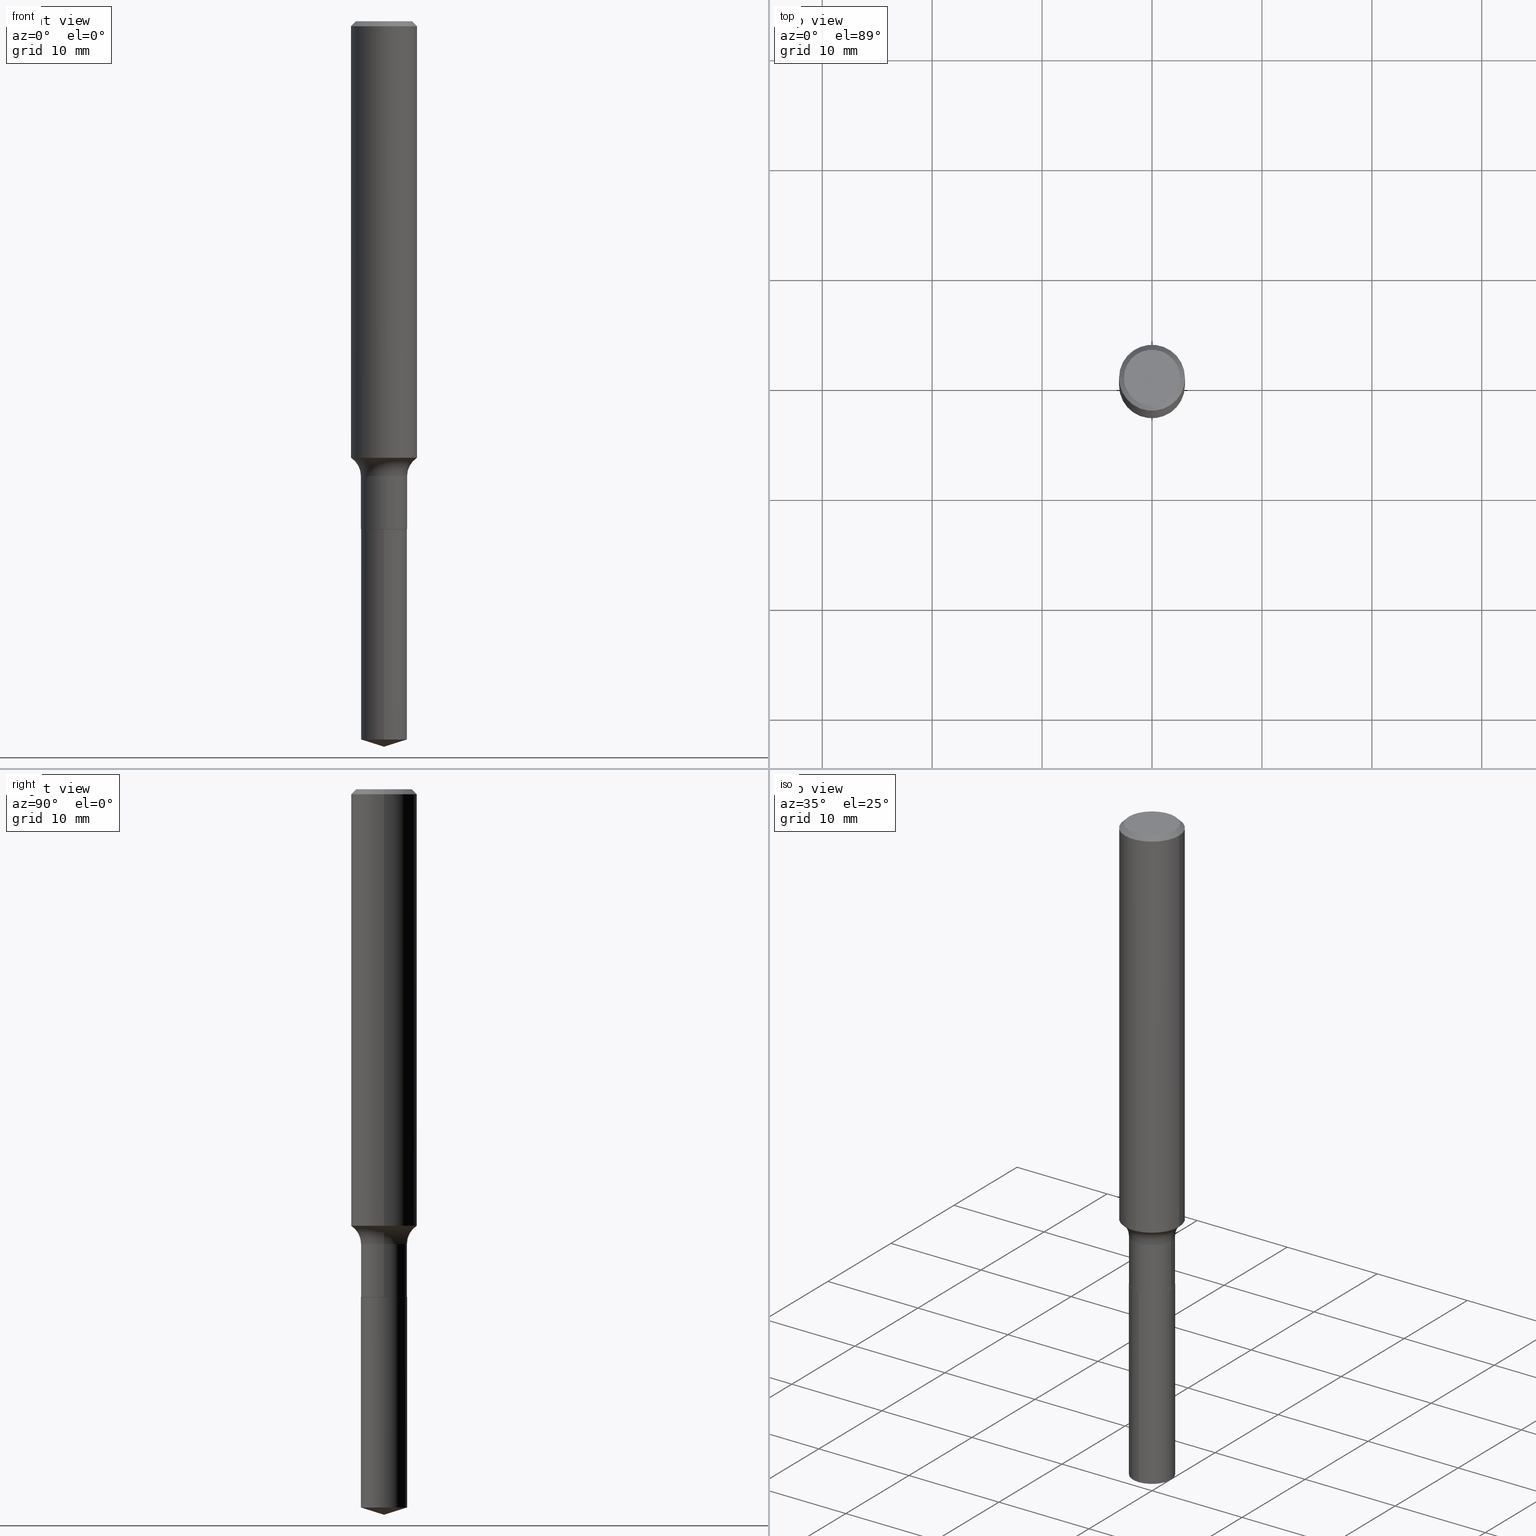
[diagram: canonical four-view strip — front | top / right | iso, engineering-drawing reading convention]
A machine part, canonical four-view strip (front | top / right | iso — engineering-drawing reading convention). The complete STEP part file that produces these views, byte-faithful:
ISO-10303-21;
HEADER;
FILE_DESCRIPTION (( 'STEP AP203' ),
    '1' );
FILE_NAME ('63163.STEP',
    '2024-04-19T14:54:35',
    ( '' ),
    ( '' ),
    'SwSTEP 2.0',
    'SolidWorks 2023',
    '' );
FILE_SCHEMA (( 'CONFIG_CONTROL_DESIGN' ));
ENDSEC;

DATA;
#1 = EDGE_LOOP ( 'NONE', ( #383, #206, #93, #55 ) ) ;
#2 = CARTESIAN_POINT ( 'NONE',  ( 0.08219999999999999529, -6.924654939327608213E-15, -1.818899999999999739 ) ) ;
#3 = CIRCLE ( 'NONE', #130, 0.08269999999999998186 ) ;
#4 = VECTOR ( 'NONE', #196, 39.37007874015748143 ) ;
#5 = DIRECTION ( 'NONE',  ( -2.445468806185136597E-29, 3.491481338843145583E-15, 1.000000000000000000 ) ) ;
#6 = DIRECTION ( 'NONE',  ( -2.445468806185136597E-29, 3.491481338843145583E-15, 1.000000000000000000 ) ) ;
#7 = ORIENTED_EDGE ( 'NONE', *, *, #451, .F. ) ;
#8 = DIRECTION ( 'NONE',  ( -2.445468806185136597E-29, 3.491481338843145583E-15, 1.000000000000000000 ) ) ;
#9 = AXIS2_PLACEMENT_3D ( 'NONE', #462, #126, #275 ) ;
#10 = LOCAL_TIME ( 10, 54, 35.00000000000000000, #259 ) ;
#11 = EDGE_CURVE ( 'NONE', #90, #464, #86, .T. ) ;
#12 =( GEOMETRIC_REPRESENTATION_CONTEXT ( 3 ) GLOBAL_UNCERTAINTY_ASSIGNED_CONTEXT ( ( #465 ) ) GLOBAL_UNIT_ASSIGNED_CONTEXT ( ( #115, #340, #269 ) ) REPRESENTATION_CONTEXT ( 'NONE', 'WORKASPACE' ) );
#13 = DIRECTION ( 'NONE',  ( -2.445468806185136877E-29, 3.491481338843145188E-15, 1.000000000000000000 ) ) ;
#14 = APPROVAL ( #417, 'UNSPECIFIED' ) ;
#15 = LINE ( 'NONE', #466, #114 ) ;
#16 = VERTEX_POINT ( 'NONE', #354 ) ;
#17 = VERTEX_POINT ( 'NONE', #471 ) ;
#18 = VERTEX_POINT ( 'NONE', #123 ) ;
#19 = FACE_OUTER_BOUND ( 'NONE', #279, .T. ) ;
#20 = AXIS2_PLACEMENT_3D ( 'NONE', #31, #148, #373 ) ;
#21 = ORIENTED_EDGE ( 'NONE', *, *, #89, .F. ) ;
#22 = CIRCLE ( 'NONE', #46, 0.08269999999999998186 ) ;
#23 = ORIENTED_EDGE ( 'NONE', *, *, #116, .T. ) ;
#24 = FACE_OUTER_BOUND ( 'NONE', #247, .T. ) ;
#25 = ORIENTED_EDGE ( 'NONE', *, *, #325, .T. ) ;
#26 = CARTESIAN_POINT ( 'NONE',  ( 4.446840477167052112E-29, -6.348909666552375037E-15, -1.818400000000000016 ) ) ;
#27 = ORIENTED_EDGE ( 'NONE', *, *, #92, .T. ) ;
#28 = CYLINDRICAL_SURFACE ( 'NONE', #113, 0.1181000000000000799 ) ;
#29 = CARTESIAN_POINT ( 'NONE',  ( 6.290709977179356709E-29, -8.980980633568813177E-15, -2.572324790159707497 ) ) ;
#30 = CONICAL_SURFACE ( 'NONE', #336, 0.1180999999999999966, 0.7853981633974456145 ) ;
#31 = CARTESIAN_POINT ( 'NONE',  ( 7.015701749847187307E-46, -1.001656274515824970E-31, -2.868857591682589212E-17 ) ) ;
#32 = AXIS2_PLACEMENT_3D ( 'NONE', #26, #477, #371 ) ;
#33 = CIRCLE ( 'NONE', #81, 0.08269999999999998186 ) ;
#34 = COORDINATED_UNIVERSAL_TIME_OFFSET ( 5, 0, .BEHIND. ) ;
#35 = DIRECTION ( 'NONE',  ( -2.445694367474443038E-29, 3.491158322238707200E-15, 1.000000000000000000 ) ) ;
#36 = DESIGN_CONTEXT ( 'detailed design', #193, 'design' ) ;
#37 = EDGE_CURVE ( 'NONE', #351, #152, #53, .T. ) ;
#38 = EDGE_CURVE ( 'NONE', #464, #349, #424, .T. ) ;
#39 = DIRECTION ( 'NONE',  ( 1.000000000000000000, -6.982962677686270655E-15, 0.000000000000000000 ) ) ;
#40 = CARTESIAN_POINT ( 'NONE',  ( 4.448063211570144353E-29, -6.350655407221796540E-15, -1.818899999999999739 ) ) ;
#41 = DIRECTION ( 'NONE',  ( 0.000000000000000000, 0.000000000000000000, 1.000000000000000000 ) ) ;
#42 = ORIENTED_EDGE ( 'NONE', *, *, #404, .F. ) ;
#43 = CARTESIAN_POINT ( 'NONE',  ( 4.448063211570144353E-29, -6.350655407221796540E-15, -1.818899999999999739 ) ) ;
#44 = CARTESIAN_POINT ( 'NONE',  ( -5.774910134446096161E-16, -0.08270000000000635176, -1.818899999999999517 ) ) ;
#45 = CYLINDRICAL_SURFACE ( 'NONE', #124, 0.08269999999999998186 ) ;
#46 = AXIS2_PLACEMENT_3D ( 'NONE', #433, #5, #380 ) ;
#47 = ADVANCED_FACE ( 'NONE', ( #234 ), #45, .T. ) ;
#48 = DIRECTION ( 'NONE',  ( 1.000000000000000000, -6.982962677686266711E-15, 0.000000000000000000 ) ) ;
#49 = EDGE_LOOP ( 'NONE', ( #292, #388, #396, #459 ) ) ;
#50 = CARTESIAN_POINT ( 'NONE',  ( 3.823149527577877642E-29, -5.458444285767998317E-15, -1.563360578514957355 ) ) ;
#51 = EDGE_LOOP ( 'NONE', ( #365, #85, #129, #170 ) ) ;
#52 = PLANE ( 'NONE',  #343 ) ;
#53 = LINE ( 'NONE', #133, #422 ) ;
#54 = EDGE_CURVE ( 'NONE', #90, #18, #187, .T. ) ;
#55 = ORIENTED_EDGE ( 'NONE', *, *, #376, .T. ) ;
#56 = DIRECTION ( 'NONE',  ( 6.982962677686265922E-15, 1.000000000000000000, -3.491158322238707200E-15 ) ) ;
#57 = PERSON_AND_ORGANIZATION_ROLE ( 'design_owner' ) ;
#58 = EDGE_LOOP ( 'NONE', ( #94, #491, #205, #402 ) ) ;
#59 = VECTOR ( 'NONE', #421, 39.37007874015748143 ) ;
#60 = ADVANCED_FACE ( 'NONE', ( #236 ), #177, .T. ) ;
#61 = DIRECTION ( 'NONE',  ( -2.445468806185136597E-29, 3.491481338843145583E-15, 1.000000000000000000 ) ) ;
#62 = ADVANCED_FACE ( 'NONE', ( #363 ), #30, .T. ) ;
#63 = CARTESIAN_POINT ( 'NONE',  ( -5.774910134445912751E-16, -0.08270000000000897467, -2.572324790159707053 ) ) ;
#64 = ADVANCED_FACE ( 'NONE', ( #179 ), #28, .T. ) ;
#65 = CONICAL_SURFACE ( 'NONE', #314, 0.08219999999999999529, 0.7853981633975336552 ) ;
#66 = CIRCLE ( 'NONE', #188, 0.08269999999999999574 ) ;
#67 = CARTESIAN_POINT ( 'NONE',  ( -0.1181000000000000799, 8.391509709326788873E-16, -5.809262341591047988E-30 ) ) ;
#68 = FACE_OUTER_BOUND ( 'NONE', #120, .T. ) ;
#69 = DIRECTION ( 'NONE',  ( 1.000000000000000000, -6.982962677686267499E-15, 4.883557194083113462E-29 ) ) ;
#70 = EDGE_LOOP ( 'NONE', ( #178, #186, #391, #335 ) ) ;
#71 = AXIS2_PLACEMENT_3D ( 'NONE', #293, #258, #406 ) ;
#72 = AXIS2_PLACEMENT_3D ( 'NONE', #79, #284, #272 ) ;
#73 = CARTESIAN_POINT ( 'NONE',  ( 0.1180999999999999966, -8.865394841523547570E-16, -0.01771500000000010913 ) ) ;
#74 = PERSON_AND_ORGANIZATION_ROLE ( 'design_supplier' ) ;
#75 = CARTESIAN_POINT ( 'NONE',  ( 0.1181000000000001354, -6.283132178002746580E-15, -1.563360578514957355 ) ) ;
#76 = DIRECTION ( 'NONE',  ( 1.000000000000000000, -6.982962677686266711E-15, 0.000000000000000000 ) ) ;
#77 = CARTESIAN_POINT ( 'NONE',  ( 0.000000000000000000, 0.000000000000000000, 0.000000000000000000 ) ) ;
#78 = EDGE_CURVE ( 'NONE', #90, #152, #262, .T. ) ;
#79 = CARTESIAN_POINT ( 'NONE',  ( 6.290709977179356709E-29, -8.980980633568813177E-15, -2.572324790159707497 ) ) ;
#80 = VECTOR ( 'NONE', #410, 39.37007874015748143 ) ;
#81 = AXIS2_PLACEMENT_3D ( 'NONE', #128, #155, #280 ) ;
#82 = DIRECTION ( 'NONE',  ( -2.445694367474443318E-29, 3.491158322238707200E-15, 1.000000000000000000 ) ) ;
#83 = DIRECTION ( 'NONE',  ( -2.445468806185136877E-29, 3.491481338843145188E-15, 1.000000000000000000 ) ) ;
#84 = CARTESIAN_POINT ( 'NONE',  ( 4.448063211570144353E-29, -6.350655407221796540E-15, -1.818899999999999739 ) ) ;
#85 = ORIENTED_EDGE ( 'NONE', *, *, #54, .T. ) ;
#86 = CIRCLE ( 'NONE', #232, 0.1181000000000001632 ) ;
#87 = AXIS2_PLACEMENT_3D ( 'NONE', #43, #117, #469 ) ;
#88 = DIRECTION ( 'NONE',  ( 0.7071067811866078578, -2.468850131082888544E-15, 0.7071067811864871766 ) ) ;
#89 = EDGE_CURVE ( 'NONE', #201, #393, #399, .T. ) ;
#90 = VERTEX_POINT ( 'NONE', #217 ) ;
#91 = FACE_OUTER_BOUND ( 'NONE', #362, .T. ) ;
#92 = EDGE_CURVE ( 'NONE', #16, #111, #100, .T. ) ;
#93 = ORIENTED_EDGE ( 'NONE', *, *, #37, .T. ) ;
#94 = ORIENTED_EDGE ( 'NONE', *, *, #461, .T. ) ;
#95 = DIRECTION ( 'NONE',  ( -2.445468806185136597E-29, 3.491481338843145583E-15, 1.000000000000000000 ) ) ;
#96 = PERSON_AND_ORGANIZATION ( #367, #290 ) ;
#97 = EDGE_LOOP ( 'NONE', ( #273, #390, #21, #315 ) ) ;
#98 = AXIS2_PLACEMENT_3D ( 'NONE', #487, #146, #445 ) ;
#99 = APPROVAL_ROLE ( '' ) ;
#100 = LINE ( 'NONE', #256, #303 ) ;
#101 = ADVANCED_FACE ( 'NONE', ( #482 ), #438, .T. ) ;
#102 = ORIENTED_EDGE ( 'NONE', *, *, #54, .F. ) ;
#103 = DIRECTION ( 'NONE',  ( -2.445468806185136597E-29, 3.491481338843145583E-15, 1.000000000000000000 ) ) ;
#104 = CARTESIAN_POINT ( 'NONE',  ( 0.08219999999999999529, -6.924654939327608213E-15, -1.818899999999999739 ) ) ;
#105 = DIRECTION ( 'NONE',  ( -2.445694367474443318E-29, 3.491158322238707200E-15, 1.000000000000000000 ) ) ;
#106 = DIRECTION ( 'NONE',  ( 1.000000000000000000, -6.982962677686267499E-15, 4.876176775795936353E-29 ) ) ;
#107 = CLOSED_SHELL ( 'NONE', ( #163, #101, #64, #160, #156, #47, #204, #243, #62, #135, #311, #264 ) ) ;
#108 = CIRCLE ( 'NONE', #360, 0.1180999999999999966 ) ;
#109 = PRODUCT_RELATED_PRODUCT_CATEGORY ( 'detail', '', ( #287 ) ) ;
#110 = APPROVAL_DATE_TIME ( #153, #14 ) ;
#111 = VERTEX_POINT ( 'NONE', #63 ) ;
#112 = DIRECTION ( 'NONE',  ( -2.445468806185136597E-29, 3.491481338843145583E-15, 1.000000000000000000 ) ) ;
#113 = AXIS2_PLACEMENT_3D ( 'NONE', #182, #103, #331 ) ;
#114 = VECTOR ( 'NONE', #207, 39.37007874015748854 ) ;
#115 =( CONVERSION_BASED_UNIT ( 'INCH', #450 ) LENGTH_UNIT ( ) NAMED_UNIT ( #386 ) );
#116 = EDGE_CURVE ( 'NONE', #351, #436, #157, .T. ) ;
#117 = DIRECTION ( 'NONE',  ( -2.445694367474443318E-29, 3.491158322238707200E-15, 1.000000000000000000 ) ) ;
#118 = CARTESIAN_POINT ( 'NONE',  ( 3.823149527577877642E-29, -5.458444285767998317E-15, -1.563360578514957355 ) ) ;
#119 = PERSON_AND_ORGANIZATION ( #367, #290 ) ;
#120 = EDGE_LOOP ( 'NONE', ( #167, #210, #429 ) ) ;
#121 = DIRECTION ( 'NONE',  ( -6.982962677686266711E-15, -1.000000000000000000, 3.491481338843145583E-15 ) ) ;
#122 = CARTESIAN_POINT ( 'NONE',  ( 4.448063211570144353E-29, -6.350655407221796540E-15, -1.818899999999999739 ) ) ;
#123 = CARTESIAN_POINT ( 'NONE',  ( -0.08269999999999998186, -5.430123819089499970E-15, -1.628699999999999815 ) ) ;
#124 = AXIS2_PLACEMENT_3D ( 'NONE', #200, #8, #305 ) ;
#125 = CIRCLE ( 'NONE', #401, 0.1180999999999999966 ) ;
#126 = DIRECTION ( 'NONE',  ( 7.105427357601001859E-15, 1.000000000000000000, -3.491481338843145583E-15 ) ) ;
#127 = ORIENTED_EDGE ( 'NONE', *, *, #473, .T. ) ;
#128 = CARTESIAN_POINT ( 'NONE',  ( 4.446840477167052112E-29, -6.348909666552375037E-15, -1.818400000000000016 ) ) ;
#129 = ORIENTED_EDGE ( 'NONE', *, *, #183, .T. ) ;
#130 = AXIS2_PLACEMENT_3D ( 'NONE', #320, #61, #475 ) ;
#131 = CARTESIAN_POINT ( 'NONE',  ( 4.448063211570144353E-29, -6.350655407221796540E-15, -1.818899999999999739 ) ) ;
#132 = VECTOR ( 'NONE', #35, 39.37007874015748143 ) ;
#133 = CARTESIAN_POINT ( 'NONE',  ( -0.1180999999999999966, 7.628363003171413738E-16, -0.01771500000000010913 ) ) ;
#134 = APPLICATION_CONTEXT ( 'configuration controlled 3d designs of mechanical parts and assemblies' ) ;
#135 = ADVANCED_FACE ( 'NONE', ( #185 ), #334, .F. ) ;
#136 = LINE ( 'NONE', #322, #470 ) ;
#137 = PERSON_AND_ORGANIZATION ( #367, #290 ) ;
#138 = DIRECTION ( 'NONE',  ( -2.445694367474443318E-29, 3.491158322238707200E-15, 1.000000000000000000 ) ) ;
#139 = CONICAL_SURFACE ( 'NONE', #180, 124.8659371009131434, 1.265363707695887241 ) ;
#140 = CIRCLE ( 'NONE', #304, 0.07799999999999999989 ) ;
#141 = COORDINATED_UNIVERSAL_TIME_OFFSET ( 5, 0, .BEHIND. ) ;
#142 = VERTEX_POINT ( 'NONE', #104 ) ;
#143 = CARTESIAN_POINT ( 'NONE',  ( 7.015701749847187307E-46, -1.001656274515824970E-31, -2.868857591682589212E-17 ) ) ;
#144 = CC_DESIGN_PERSON_AND_ORGANIZATION_ASSIGNMENT ( #485, #411, ( #299 ) ) ;
#145 = DATE_AND_TIME ( #298, #490 ) ;
#146 = DIRECTION ( 'NONE',  ( 2.438088387897960049E-29, -3.491481338843145188E-15, -1.000000000000000000 ) ) ;
#147 = LOCAL_TIME ( 10, 54, 35.00000000000000000, #209 ) ;
#148 = DIRECTION ( 'NONE',  ( -2.445468806185136597E-29, 3.491481338843145583E-15, 1.000000000000000000 ) ) ;
#149 = CARTESIAN_POINT ( 'NONE',  ( 3.982935044633731907E-29, -5.686575656573830550E-15, -1.628699999999999815 ) ) ;
#150 = ORIENTED_EDGE ( 'NONE', *, *, #197, .F. ) ;
#151 =( LENGTH_UNIT ( ) NAMED_UNIT ( * ) SI_UNIT ( $, .METRE. ) );
#152 = VERTEX_POINT ( 'NONE', #253 ) ;
#153 = DATE_AND_TIME ( #267, #446 ) ;
#154 = ADVANCED_FACE ( 'NONE', ( #68 ), #139, .T. ) ;
#155 = DIRECTION ( 'NONE',  ( -2.445468806185136597E-29, 3.491481338843145583E-15, 1.000000000000000000 ) ) ;
#156 = ADVANCED_FACE ( 'NONE', ( #403 ), #374, .T. ) ;
#157 = CIRCLE ( 'NONE', #20, 0.1003850000000000159 ) ;
#158 = AXIS2_PLACEMENT_3D ( 'NONE', #40, #6, #318 ) ;
#159 = APPLICATION_PROTOCOL_DEFINITION ( 'international standard', 'config_control_design', 1994, #134 ) ;
#160 = ADVANCED_FACE ( 'NONE', ( #409 ), #239, .F. ) ;
#161 = ORIENTED_EDGE ( 'NONE', *, *, #486, .F. ) ;
#162 = CARTESIAN_POINT ( 'NONE',  ( 0.000000000000000000, 0.000000000000000000, 0.000000000000000000 ) ) ;
#163 = ADVANCED_FACE ( 'NONE', ( #372 ), #65, .T. ) ;
#164 = ORIENTED_EDGE ( 'NONE', *, *, #225, .T. ) ;
#165 = CIRCLE ( 'NONE', #423, 0.08269999999999999574 ) ;
#166 = ORIENTED_EDGE ( 'NONE', *, *, #308, .T. ) ;
#167 = ORIENTED_EDGE ( 'NONE', *, *, #92, .F. ) ;
#168 = DIRECTION ( 'NONE',  ( -2.445468806185136597E-29, 3.491481338843145583E-15, 1.000000000000000000 ) ) ;
#169 = EDGE_LOOP ( 'NONE', ( #102, #413, #25, #432 ) ) ;
#170 = ORIENTED_EDGE ( 'NONE', *, *, #325, .F. ) ;
#171 = AXIS2_PLACEMENT_3D ( 'NONE', #332, #216, #69 ) ;
#172 = CARTESIAN_POINT ( 'NONE',  ( 4.448063211570144353E-29, -6.350655407221796540E-15, -1.818899999999999739 ) ) ;
#173 = AXIS2_PLACEMENT_3D ( 'NONE', #149, #228, #302 ) ;
#174 = ORIENTED_EDGE ( 'NONE', *, *, #297, .F. ) ;
#175 = DIRECTION ( 'NONE',  ( -2.445468806185136597E-29, 3.491481338843145583E-15, 1.000000000000000000 ) ) ;
#176 = CC_DESIGN_DATE_AND_TIME_ASSIGNMENT ( #479, #353, ( #435 ) ) ;
#177 = CYLINDRICAL_SURFACE ( 'NONE', #326, 0.08269999999999999574 ) ;
#178 = ORIENTED_EDGE ( 'NONE', *, *, #237, .F. ) ;
#179 = FACE_OUTER_BOUND ( 'NONE', #58, .T. ) ;
#180 = AXIS2_PLACEMENT_3D ( 'NONE', #484, #369, #260 ) ;
#181 = APPLICATION_PROTOCOL_DEFINITION ( 'international standard', 'config_control_design', 1994, #193 ) ;
#182 = CARTESIAN_POINT ( 'NONE',  ( 0.000000000000000000, 0.000000000000000000, 0.000000000000000000 ) ) ;
#183 = EDGE_CURVE ( 'NONE', #18, #286, #3, .T. ) ;
#184 = EDGE_CURVE ( 'NONE', #436, #351, #408, .T. ) ;
#185 = FACE_OUTER_BOUND ( 'NONE', #416, .T. ) ;
#186 = ORIENTED_EDGE ( 'NONE', *, *, #297, .T. ) ;
#187 = CIRCLE ( 'NONE', #9, 0.07799999999999999989 ) ;
#188 = AXIS2_PLACEMENT_3D ( 'NONE', #454, #266, #338 ) ;
#189 = PERSON_AND_ORGANIZATION ( #367, #290 ) ;
#190 = EDGE_CURVE ( 'NONE', #16, #359, #136, .T. ) ;
#191 = CC_DESIGN_DATE_AND_TIME_ASSIGNMENT ( #145, #419, ( #198 ) ) ;
#192 = DIRECTION ( 'NONE',  ( 1.000000000000000000, -6.982962677686263555E-15, 0.000000000000000000 ) ) ;
#193 = APPLICATION_CONTEXT ( 'configuration controlled 3d designs of mechanical parts and assemblies' ) ;
#194 = DIRECTION ( 'NONE',  ( -6.982962677686265922E-15, -1.000000000000000000, 3.303322846026920670E-15 ) ) ;
#195 = ORIENTED_EDGE ( 'NONE', *, *, #384, .T. ) ;
#196 = DIRECTION ( 'NONE',  ( -2.445694367474443038E-29, 3.491158322238707200E-15, 1.000000000000000000 ) ) ;
#197 = EDGE_CURVE ( 'NONE', #359, #111, #165, .T. ) ;
#198 = SECURITY_CLASSIFICATION ( '', '', #341 ) ;
#199 = CARTESIAN_POINT ( 'NONE',  ( -5.774910134446096161E-16, -0.08270000000000635176, -1.818899999999999517 ) ) ;
#200 = CARTESIAN_POINT ( 'NONE',  ( 0.000000000000000000, 0.000000000000000000, 0.000000000000000000 ) ) ;
#201 = VERTEX_POINT ( 'NONE', #257 ) ;
#202 = LOCAL_TIME ( 10, 54, 35.00000000000000000, #141 ) ;
#203 = CARTESIAN_POINT ( 'NONE',  ( 5.876188424736471968E-16, 0.08269999999999365359, -1.818900000000000183 ) ) ;
#204 = ADVANCED_FACE ( 'NONE', ( #405 ), #377, .F. ) ;
#205 = ORIENTED_EDGE ( 'NONE', *, *, #384, .F. ) ;
#206 = ORIENTED_EDGE ( 'NONE', *, *, #116, .F. ) ;
#207 = DIRECTION ( 'NONE',  ( 0.7071067811865454633, -7.319954787623246579E-15, -0.7071067811865493491 ) ) ;
#208 = DIRECTION ( 'NONE',  ( -2.445468806185136597E-29, 3.491481338843145583E-15, 1.000000000000000000 ) ) ;
#209 = COORDINATED_UNIVERSAL_TIME_OFFSET ( 5, 0, .BEHIND. ) ;
#210 = ORIENTED_EDGE ( 'NONE', *, *, #190, .T. ) ;
#211 = DIRECTION ( 'NONE',  ( -0.7071067811865454633, 2.468850131082235761E-15, -0.7071067811865493491 ) ) ;
#212 = VECTOR ( 'NONE', #83, 39.37007874015748143 ) ;
#213 = FACE_OUTER_BOUND ( 'NONE', #240, .T. ) ;
#214 = AXIS2_PLACEMENT_3D ( 'NONE', #162, #95, #397 ) ;
#215 = CIRCLE ( 'NONE', #327, 0.08219999999999999529 ) ;
#216 = DIRECTION ( 'NONE',  ( -2.445468806185136597E-29, 3.491481338843145583E-15, 1.000000000000000000 ) ) ;
#217 = CARTESIAN_POINT ( 'NONE',  ( -0.1181000000000001354, -4.619293314835319331E-15, -1.563360578514957355 ) ) ;
#218 = EDGE_CURVE ( 'NONE', #201, #286, #483, .T. ) ;
#219 = CARTESIAN_POINT ( 'NONE',  ( 4.448063211570144353E-29, -6.350655407221796540E-15, -1.818899999999999739 ) ) ;
#220 = ORIENTED_EDGE ( 'NONE', *, *, #451, .T. ) ;
#221 = CLOSED_SHELL ( 'NONE', ( #60, #154, #301, #249, #271 ) ) ;
#222 = AXIS2_PLACEMENT_3D ( 'NONE', #84, #350, #194 ) ;
#223 = CARTESIAN_POINT ( 'NONE',  ( 5.876188424736658337E-16, 0.08269999999999365359, -1.818900000000000183 ) ) ;
#224 = PERSON_AND_ORGANIZATION ( #367, #290 ) ;
#225 = EDGE_CURVE ( 'NONE', #111, #359, #381, .T. ) ;
#226 = ADVANCED_BREP_SHAPE_REPRESENTATION ( '63163', ( #333, #306, #241 ), #12 ) ;
#227 = CARTESIAN_POINT ( 'NONE',  ( 0.1003850000000000159, -7.803837484803599345E-16, -2.868857591682071522E-17 ) ) ;
#228 = DIRECTION ( 'NONE',  ( -2.445468806185136597E-29, 3.491481338843145583E-15, 1.000000000000000000 ) ) ;
#229 = CC_DESIGN_PERSON_AND_ORGANIZATION_ASSIGNMENT ( #442, #291, ( #435 ) ) ;
#230 = DIRECTION ( 'NONE',  ( -2.445468806185136597E-29, 3.491481338843145583E-15, 1.000000000000000000 ) ) ;
#231 = DIRECTION ( 'NONE',  ( -2.445468806185136597E-29, 3.491481338843145583E-15, 1.000000000000000000 ) ) ;
#232 = AXIS2_PLACEMENT_3D ( 'NONE', #50, #208, #463 ) ;
#233 = CONICAL_SURFACE ( 'NONE', #337, 124.8659371009131434, 1.265363707695887241 ) ;
#234 = FACE_OUTER_BOUND ( 'NONE', #49, .T. ) ;
#235 = EDGE_CURVE ( 'NONE', #286, #18, #22, .T. ) ;
#236 = FACE_OUTER_BOUND ( 'NONE', #248, .T. ) ;
#237 = EDGE_CURVE ( 'NONE', #17, #393, #356, .T. ) ;
#238 = CARTESIAN_POINT ( 'NONE',  ( -0.1003850000000000159, 7.319105043583386689E-16, -2.868857591683090262E-17 ) ) ;
#239 = TOROIDAL_SURFACE ( 'NONE', #171, 0.1607000000000000095, 0.07799999999999999989 ) ;
#240 = EDGE_LOOP ( 'NONE', ( #309, #431 ) ) ;
#241 = AXIS2_PLACEMENT_3D ( 'NONE', #77, #41, #345 ) ;
#242 = ORIENTED_EDGE ( 'NONE', *, *, #197, .T. ) ;
#243 = ADVANCED_FACE ( 'NONE', ( #91 ), #453, .T. ) ;
#244 = ORIENTED_EDGE ( 'NONE', *, *, #376, .F. ) ;
#245 = DIRECTION ( 'NONE',  ( 2.445694367474442758E-29, -3.491158322238707200E-15, -1.000000000000000000 ) ) ;
#246 = EDGE_CURVE ( 'NONE', #142, #17, #296, .T. ) ;
#247 = EDGE_LOOP ( 'NONE', ( #474, #27, #150 ) ) ;
#248 = EDGE_LOOP ( 'NONE', ( #164, #220, #42, #398 ) ) ;
#249 = ADVANCED_FACE ( 'NONE', ( #19 ), #382, .T. ) ;
#250 = CARTESIAN_POINT ( 'NONE',  ( -0.08219999999999999529, -5.766589278426994615E-15, -1.818899999999999739 ) ) ;
#251 = APPROVAL_STATUS ( 'not_yet_approved' ) ;
#252 = ORIENTED_EDGE ( 'NONE', *, *, #218, .F. ) ;
#253 = CARTESIAN_POINT ( 'NONE',  ( -0.1180999999999999966, -1.920996967910122878E-15, -0.01771500000000010913 ) ) ;
#254 = VECTOR ( 'NONE', #88, 39.37007874015748143 ) ;
#255 = CC_DESIGN_SECURITY_CLASSIFICATION ( #198, ( #299 ) ) ;
#256 = CARTESIAN_POINT ( 'NONE',  ( 6.354071697587352413E-29, -9.072600854308683905E-15, -2.598399999999999821 ) ) ;
#257 = CARTESIAN_POINT ( 'NONE',  ( 0.08269999999999998186, -6.926400679997028928E-15, -1.818400000000000016 ) ) ;
#258 = DIRECTION ( 'NONE',  ( 2.445468806185136597E-29, -3.491481338843145583E-15, -1.000000000000000000 ) ) ;
#259 = COORDINATED_UNIVERSAL_TIME_OFFSET ( 5, 0, .BEHIND. ) ;
#260 = DIRECTION ( 'NONE',  ( -6.982962677686266711E-15, -1.000000000000000000, 3.500519750498758469E-15 ) ) ;
#261 = CONICAL_SURFACE ( 'NONE', #158, 0.08219999999999999529, 0.7853981633975336552 ) ;
#262 = LINE ( 'NONE', #67, #80 ) ;
#263 = PRODUCT_DEFINITION_SHAPE ( 'NONE', 'NONE',  #435 ) ;
#264 = ADVANCED_FACE ( 'NONE', ( #472 ), #261, .T. ) ;
#265 = ORIENTED_EDGE ( 'NONE', *, *, #11, .T. ) ;
#266 = DIRECTION ( 'NONE',  ( -2.445694367474443318E-29, 3.491158322238707200E-15, 1.000000000000000000 ) ) ;
#267 = CALENDAR_DATE ( 2024, 19, 4 ) ;
#268 = AXIS2_PLACEMENT_3D ( 'NONE', #143, #294, #443 ) ;
#269 =( NAMED_UNIT ( * ) SI_UNIT ( $, .STERADIAN. ) SOLID_ANGLE_UNIT ( ) );
#270 = SHAPE_DEFINITION_REPRESENTATION ( #263, #226 ) ;
#271 = ADVANCED_FACE ( 'NONE', ( #213 ), #458, .F. ) ;
#272 = DIRECTION ( 'NONE',  ( -6.982962677686265922E-15, -1.000000000000000000, 6.606645692053841341E-15 ) ) ;
#273 = ORIENTED_EDGE ( 'NONE', *, *, #246, .T. ) ;
#274 = CARTESIAN_POINT ( 'NONE',  ( -8.993269785081200897E-28, 1.283751647214871266E-13, 36.77167874015748339 ) ) ;
#275 = DIRECTION ( 'NONE',  ( -1.000000000000000000, 7.105427357600997914E-15, 0.000000000000000000 ) ) ;
#276 = CC_DESIGN_PERSON_AND_ORGANIZATION_ASSIGNMENT ( #189, #489, ( #198 ) ) ;
#277 = MECHANICAL_CONTEXT ( 'NONE', #134, 'mechanical' ) ;
#278 = CARTESIAN_POINT ( 'NONE',  ( 0.1181000000000000799, -8.246878922347486570E-16, 5.758764772215004644E-30 ) ) ;
#279 = EDGE_LOOP ( 'NONE', ( #7, #242, #166, #161 ) ) ;
#280 = DIRECTION ( 'NONE',  ( 1.000000000000000000, -6.982962677686262766E-15, 0.000000000000000000 ) ) ;
#281 = VECTOR ( 'NONE', #13, 39.37007874015748143 ) ;
#282 = ORIENTED_EDGE ( 'NONE', *, *, #78, .F. ) ;
#283 = DIRECTION ( 'NONE',  ( 1.000000000000000000, -6.982962677686266711E-15, 0.000000000000000000 ) ) ;
#284 = DIRECTION ( 'NONE',  ( -2.445694367474443318E-29, 3.491158322238707200E-15, 1.000000000000000000 ) ) ;
#285 = PERSON_AND_ORGANIZATION ( #367, #290 ) ;
#286 = VERTEX_POINT ( 'NONE', #361 ) ;
#287 = PRODUCT ( '63163', '63163', '', ( #277 ) ) ;
#288 = APPROVAL_PERSON_ORGANIZATION ( #96, #347, #99 ) ;
#289 = DIRECTION ( 'NONE',  ( -6.982962677686265922E-15, -1.000000000000000000, 6.606645692053841341E-15 ) ) ;
#290 = ORGANIZATION ( 'UNSPECIFIED', 'UNSPECIFIED', '' ) ;
#291 = PERSON_AND_ORGANIZATION_ROLE ( 'creator' ) ;
#292 = ORIENTED_EDGE ( 'NONE', *, *, #394, .F. ) ;
#293 = CARTESIAN_POINT ( 'NONE',  ( 4.332147990156996744E-31, -6.185159191760670395E-17, -0.01771500000000010913 ) ) ;
#294 = DIRECTION ( 'NONE',  ( -2.445468806185136597E-29, 3.491481338843145583E-15, 1.000000000000000000 ) ) ;
#295 = CARTESIAN_POINT ( 'NONE',  ( 4.448063211570144353E-29, -6.350655407221796540E-15, -1.818899999999999739 ) ) ;
#296 = CIRCLE ( 'NONE', #488, 0.08219999999999999529 ) ;
#297 = EDGE_CURVE ( 'NONE', #17, #142, #215, .T. ) ;
#298 = CALENDAR_DATE ( 2024, 19, 4 ) ;
#299 = PRODUCT_DEFINITION_FORMATION_WITH_SPECIFIED_SOURCE ( 'ANY', '', #287, .NOT_KNOWN. ) ;
#300 = DIRECTION ( 'NONE',  ( 1.000000000000000000, -6.982962677686265922E-15, 4.876176775795935793E-29 ) ) ;
#301 = ADVANCED_FACE ( 'NONE', ( #24 ), #233, .T. ) ;
#302 = DIRECTION ( 'NONE',  ( 1.000000000000000000, -6.982962677686267499E-15, 4.883557194083113462E-29 ) ) ;
#303 = VECTOR ( 'NONE', #324, 39.37007874015748143 ) ;
#304 = AXIS2_PLACEMENT_3D ( 'NONE', #457, #121, #39 ) ;
#305 = DIRECTION ( 'NONE',  ( 1.000000000000000000, -6.982962677686267499E-15, 4.876176775795936353E-29 ) ) ;
#306 = MANIFOLD_SOLID_BREP ( 'Body-Move/Copy2[2]', #107 ) ;
#307 = CARTESIAN_POINT ( 'NONE',  ( -0.08269999999999998186, 5.876188424736027248E-16, -4.067959319640806203E-30 ) ) ;
#308 = EDGE_CURVE ( 'NONE', #111, #375, #430, .T. ) ;
#309 = ORIENTED_EDGE ( 'NONE', *, *, #404, .T. ) ;
#310 = DIRECTION ( 'NONE',  ( 1.000000000000000000, -6.982962677686266711E-15, 0.000000000000000000 ) ) ;
#311 = ADVANCED_FACE ( 'NONE', ( #392 ), #52, .F. ) ;
#312 = DIRECTION ( 'NONE',  ( -2.445468806185136877E-29, 3.491481338843145188E-15, 1.000000000000000000 ) ) ;
#313 = ORIENTED_EDGE ( 'NONE', *, *, #38, .T. ) ;
#314 = AXIS2_PLACEMENT_3D ( 'NONE', #219, #175, #328 ) ;
#315 = ORIENTED_EDGE ( 'NONE', *, *, #467, .F. ) ;
#316 = AXIS2_PLACEMENT_3D ( 'NONE', #122, #245, #56 ) ;
#317 = ORIENTED_EDGE ( 'NONE', *, *, #184, .T. ) ;
#318 = DIRECTION ( 'NONE',  ( 1.000000000000000000, -6.982962677686266711E-15, 0.000000000000000000 ) ) ;
#319 = ORIENTED_EDGE ( 'NONE', *, *, #235, .F. ) ;
#320 = CARTESIAN_POINT ( 'NONE',  ( 3.982935044633731907E-29, -5.686575656573830550E-15, -1.628699999999999815 ) ) ;
#321 = CALENDAR_DATE ( 2024, 19, 4 ) ;
#322 = CARTESIAN_POINT ( 'NONE',  ( 6.354899439672960667E-29, -9.071425784505058352E-15, -2.598399999999999821 ) ) ;
#323 = APPROVAL_DATE_TIME ( #330, #347 ) ;
#324 = DIRECTION ( 'NONE',  ( -6.659769872151621833E-15, -0.9537169507482252673, 0.3007057995042780596 ) ) ;
#325 = EDGE_CURVE ( 'NONE', #464, #286, #140, .T. ) ;
#326 = AXIS2_PLACEMENT_3D ( 'NONE', #295, #105, #400 ) ;
#327 = AXIS2_PLACEMENT_3D ( 'NONE', #131, #385, #283 ) ;
#328 = DIRECTION ( 'NONE',  ( 1.000000000000000000, -6.982962677686266711E-15, 0.000000000000000000 ) ) ;
#329 = CC_DESIGN_APPROVAL ( #14, ( #198 ) ) ;
#330 = DATE_AND_TIME ( #357, #147 ) ;
#331 = DIRECTION ( 'NONE',  ( 1.000000000000000000, -6.982962677686266711E-15, 4.876176775795936353E-29 ) ) ;
#332 = CARTESIAN_POINT ( 'NONE',  ( 3.982935044633731907E-29, -5.686575656573830550E-15, -1.628699999999999815 ) ) ;
#333 = MANIFOLD_SOLID_BREP ( 'Body-Move/Copy2[1]', #221 ) ;
#334 = PLANE ( 'NONE',  #98 ) ;
#335 = ORIENTED_EDGE ( 'NONE', *, *, #492, .F. ) ;
#336 = AXIS2_PLACEMENT_3D ( 'NONE', #434, #368, #439 ) ;
#337 = AXIS2_PLACEMENT_3D ( 'NONE', #274, #82, #352 ) ;
#338 = DIRECTION ( 'NONE',  ( -6.982962677686265922E-15, -1.000000000000000000, 3.303322846026920670E-15 ) ) ;
#339 = DATE_AND_TIME ( #441, #202 ) ;
#340 =( NAMED_UNIT ( * ) PLANE_ANGLE_UNIT ( ) SI_UNIT ( $, .RADIAN. ) );
#341 = SECURITY_CLASSIFICATION_LEVEL ( 'unclassified' ) ;
#342 = ORIENTED_EDGE ( 'NONE', *, *, #184, .F. ) ;
#343 = AXIS2_PLACEMENT_3D ( 'NONE', #172, #344, #300 ) ;
#344 = DIRECTION ( 'NONE',  ( -2.438088387897960049E-29, 3.491481338843145188E-15, 1.000000000000000000 ) ) ;
#345 = DIRECTION ( 'NONE',  ( 1.000000000000000000, 0.000000000000000000, 0.000000000000000000 ) ) ;
#346 = CARTESIAN_POINT ( 'NONE',  ( 0.08269999999999998186, -5.774910134446541868E-16, 4.032598193583238570E-30 ) ) ;
#347 = APPROVAL ( #251, 'UNSPECIFIED' ) ;
#348 = VERTEX_POINT ( 'NONE', #223 ) ;
#349 = VERTEX_POINT ( 'NONE', #73 ) ;
#350 = DIRECTION ( 'NONE',  ( -2.445694367474443318E-29, 3.491158322238707200E-15, 1.000000000000000000 ) ) ;
#351 = VERTEX_POINT ( 'NONE', #238 ) ;
#352 = DIRECTION ( 'NONE',  ( -6.982962677686266711E-15, -1.000000000000000000, 3.500519750498758469E-15 ) ) ;
#353 = DATE_TIME_ROLE ( 'creation_date' ) ;
#354 = CARTESIAN_POINT ( 'NONE',  ( 6.354892244445592859E-29, -9.071425784505056774E-15, -2.598399999999999821 ) ) ;
#355 = ORIENTED_EDGE ( 'NONE', *, *, #246, .F. ) ;
#356 = LINE ( 'NONE', #250, #59 ) ;
#357 = CALENDAR_DATE ( 2024, 19, 4 ) ;
#358 = ORIENTED_EDGE ( 'NONE', *, *, #37, .F. ) ;
#359 = VERTEX_POINT ( 'NONE', #387 ) ;
#360 = AXIS2_PLACEMENT_3D ( 'NONE', #389, #168, #310 ) ;
#361 = CARTESIAN_POINT ( 'NONE',  ( 0.08269999999999998186, -6.264066670018484441E-15, -1.628699999999999815 ) ) ;
#362 = EDGE_LOOP ( 'NONE', ( #282, #265, #313, #244 ) ) ;
#363 = FACE_OUTER_BOUND ( 'NONE', #1, .T. ) ;
#364 = CARTESIAN_POINT ( 'NONE',  ( 0.000000000000000000, 0.000000000000000000, 0.000000000000000000 ) ) ;
#365 = ORIENTED_EDGE ( 'NONE', *, *, #11, .F. ) ;
#366 = APPROVAL ( #476, 'UNSPECIFIED' ) ;
#367 = PERSON ( 'UNSPECIFIED', 'UNSPECIFIED', 'UNSPECIFIED', ('UNSPECIFIED'), ('UNSPECIFIED'), ('UNSPECIFIED') ) ;
#368 = DIRECTION ( 'NONE',  ( 2.445468806185136597E-29, -3.491481338843145583E-15, -1.000000000000000000 ) ) ;
#369 = DIRECTION ( 'NONE',  ( -2.445694367474443318E-29, 3.491158322238707200E-15, 1.000000000000000000 ) ) ;
#370 = CC_DESIGN_APPROVAL ( #366, ( #299 ) ) ;
#371 = DIRECTION ( 'NONE',  ( 1.000000000000000000, -6.982962677686262766E-15, 0.000000000000000000 ) ) ;
#372 = FACE_OUTER_BOUND ( 'NONE', #97, .T. ) ;
#373 = DIRECTION ( 'NONE',  ( 1.000000000000000000, -6.982962677686266711E-15, 4.875668750515085695E-29 ) ) ;
#374 = CYLINDRICAL_SURFACE ( 'NONE', #426, 0.08269999999999998186 ) ;
#375 = VERTEX_POINT ( 'NONE', #199 ) ;
#376 = EDGE_CURVE ( 'NONE', #152, #349, #125, .T. ) ;
#377 = TOROIDAL_SURFACE ( 'NONE', #173, 0.1607000000000000095, 0.07799999999999999989 ) ;
#378 = CARTESIAN_POINT ( 'NONE',  ( -0.08269999999999998186, -5.430123819089499970E-15, -1.818400000000000016 ) ) ;
#379 = LINE ( 'NONE', #307, #281 ) ;
#380 = DIRECTION ( 'NONE',  ( 1.000000000000000000, -6.982962677686262766E-15, 0.000000000000000000 ) ) ;
#381 = CIRCLE ( 'NONE', #72, 0.08269999999999999574 ) ;
#382 = CYLINDRICAL_SURFACE ( 'NONE', #87, 0.08269999999999999574 ) ;
#383 = ORIENTED_EDGE ( 'NONE', *, *, #473, .F. ) ;
#384 = EDGE_CURVE ( 'NONE', #349, #152, #108, .T. ) ;
#385 = DIRECTION ( 'NONE',  ( -2.445468806185136597E-29, 3.491481338843145583E-15, 1.000000000000000000 ) ) ;
#386 = DIMENSIONAL_EXPONENTS ( 1.000000000000000000, 0.000000000000000000, 0.000000000000000000, 0.000000000000000000, 0.000000000000000000, 0.000000000000000000, 0.000000000000000000 ) ;
#387 = CARTESIAN_POINT ( 'NONE',  ( 5.876188424736658337E-16, 0.08269999999999103069, -2.572324790159708385 ) ) ;
#388 = ORIENTED_EDGE ( 'NONE', *, *, #492, .T. ) ;
#389 = CARTESIAN_POINT ( 'NONE',  ( 4.332147990156996744E-31, -6.185159191760670395E-17, -0.01771500000000010913 ) ) ;
#390 = ORIENTED_EDGE ( 'NONE', *, *, #237, .T. ) ;
#391 = ORIENTED_EDGE ( 'NONE', *, *, #467, .T. ) ;
#392 = FACE_OUTER_BOUND ( 'NONE', #468, .T. ) ;
#393 = VERTEX_POINT ( 'NONE', #378 ) ;
#394 = EDGE_CURVE ( 'NONE', #393, #18, #379, .T. ) ;
#395 = EDGE_LOOP ( 'NONE', ( #420, #480, #319, #252 ) ) ;
#396 = ORIENTED_EDGE ( 'NONE', *, *, #218, .T. ) ;
#397 = DIRECTION ( 'NONE',  ( 1.000000000000000000, -6.982962677686266711E-15, 4.876176775795936353E-29 ) ) ;
#398 = ORIENTED_EDGE ( 'NONE', *, *, #308, .F. ) ;
#399 = CIRCLE ( 'NONE', #32, 0.08269999999999998186 ) ;
#400 = DIRECTION ( 'NONE',  ( -6.982962677686265922E-15, -1.000000000000000000, 3.303322846026920670E-15 ) ) ;
#401 = AXIS2_PLACEMENT_3D ( 'NONE', #448, #230, #48 ) ;
#402 = ORIENTED_EDGE ( 'NONE', *, *, #38, .F. ) ;
#403 = FACE_OUTER_BOUND ( 'NONE', #395, .T. ) ;
#404 = EDGE_CURVE ( 'NONE', #375, #348, #66, .T. ) ;
#405 = FACE_OUTER_BOUND ( 'NONE', #169, .T. ) ;
#406 = DIRECTION ( 'NONE',  ( -1.000000000000000000, 6.982962677686266711E-15, 0.000000000000000000 ) ) ;
#407 = CC_DESIGN_PERSON_AND_ORGANIZATION_ASSIGNMENT ( #285, #57, ( #287 ) ) ;
#408 = CIRCLE ( 'NONE', #268, 0.1003850000000000159 ) ;
#409 = FACE_OUTER_BOUND ( 'NONE', #51, .T. ) ;
#410 = DIRECTION ( 'NONE',  ( -2.445468806185136877E-29, 3.491481338843145188E-15, 1.000000000000000000 ) ) ;
#411 = PERSON_AND_ORGANIZATION_ROLE ( 'creator' ) ;
#412 = DIRECTION ( 'NONE',  ( -2.445468806185136597E-29, 3.491481338843145583E-15, 1.000000000000000000 ) ) ;
#413 = ORIENTED_EDGE ( 'NONE', *, *, #461, .F. ) ;
#414 = LINE ( 'NONE', #2, #254 ) ;
#415 = APPROVAL_PERSON_ORGANIZATION ( #137, #366, #437 ) ;
#416 = EDGE_LOOP ( 'NONE', ( #23, #317 ) ) ;
#417 = APPROVAL_STATUS ( 'not_yet_approved' ) ;
#418 = CARTESIAN_POINT ( 'NONE',  ( 4.448063211570144353E-29, -6.350655407221796540E-15, -1.818899999999999739 ) ) ;
#419 = DATE_TIME_ROLE ( 'classification_date' ) ;
#420 = ORIENTED_EDGE ( 'NONE', *, *, #89, .T. ) ;
#421 = DIRECTION ( 'NONE',  ( -0.7071067811866078578, 7.493145998870571886E-15, 0.7071067811864871766 ) ) ;
#422 = VECTOR ( 'NONE', #211, 39.37007874015748854 ) ;
#423 = AXIS2_PLACEMENT_3D ( 'NONE', #29, #138, #289 ) ;
#424 = LINE ( 'NONE', #278, #212 ) ;
#425 = LINE ( 'NONE', #203, #132 ) ;
#426 = AXIS2_PLACEMENT_3D ( 'NONE', #364, #412, #106 ) ;
#427 = VECTOR ( 'NONE', #312, 39.37007874015748143 ) ;
#428 = APPROVAL_PERSON_ORGANIZATION ( #224, #14, #444 ) ;
#429 = ORIENTED_EDGE ( 'NONE', *, *, #225, .F. ) ;
#430 = LINE ( 'NONE', #44, #4 ) ;
#431 = ORIENTED_EDGE ( 'NONE', *, *, #486, .T. ) ;
#432 = ORIENTED_EDGE ( 'NONE', *, *, #235, .T. ) ;
#433 = CARTESIAN_POINT ( 'NONE',  ( 3.982935044633731907E-29, -5.686575656573830550E-15, -1.628699999999999815 ) ) ;
#434 = CARTESIAN_POINT ( 'NONE',  ( 4.332147990156996744E-31, -6.185159191760670395E-17, -0.01771500000000010913 ) ) ;
#435 = PRODUCT_DEFINITION ( 'UNKNOWN', '', #299, #36 ) ;
#436 = VERTEX_POINT ( 'NONE', #227 ) ;
#437 = APPROVAL_ROLE ( '' ) ;
#438 = CONICAL_SURFACE ( 'NONE', #71, 0.1180999999999999966, 0.7853981633974456145 ) ;
#439 = DIRECTION ( 'NONE',  ( -1.000000000000000000, 6.982962677686266711E-15, 0.000000000000000000 ) ) ;
#440 = CIRCLE ( 'NONE', #222, 0.08269999999999999574 ) ;
#441 = CALENDAR_DATE ( 2024, 19, 4 ) ;
#442 = PERSON_AND_ORGANIZATION ( #367, #290 ) ;
#443 = DIRECTION ( 'NONE',  ( 1.000000000000000000, -6.982962677686266711E-15, 4.875668750515085695E-29 ) ) ;
#444 = APPROVAL_ROLE ( '' ) ;
#445 = DIRECTION ( 'NONE',  ( -1.000000000000000000, 6.982962677686265922E-15, -4.876176775795935793E-29 ) ) ;
#446 = LOCAL_TIME ( 10, 54, 35.00000000000000000, #34 ) ;
#447 = COORDINATED_UNIVERSAL_TIME_OFFSET ( 5, 0, .BEHIND. ) ;
#448 = CARTESIAN_POINT ( 'NONE',  ( 4.332147990156996744E-31, -6.185159191760670395E-17, -0.01771500000000010913 ) ) ;
#449 = APPROVAL_DATE_TIME ( #339, #366 ) ;
#450 = LENGTH_MEASURE_WITH_UNIT ( LENGTH_MEASURE( 0.02539999999999999897 ), #151 );
#451 = EDGE_CURVE ( 'NONE', #359, #348, #425, .T. ) ;
#452 = CC_DESIGN_APPROVAL ( #347, ( #435 ) ) ;
#453 = CYLINDRICAL_SURFACE ( 'NONE', #214, 0.1181000000000000799 ) ;
#454 = CARTESIAN_POINT ( 'NONE',  ( 4.448063211570144353E-29, -6.350655407221796540E-15, -1.818899999999999739 ) ) ;
#455 = EDGE_LOOP ( 'NONE', ( #342, #127, #195, #358 ) ) ;
#456 = CC_DESIGN_PERSON_AND_ORGANIZATION_ASSIGNMENT ( #119, #74, ( #299 ) ) ;
#457 = CARTESIAN_POINT ( 'NONE',  ( 0.1607000000000000095, -6.808737758878013276E-15, -1.628699999999999815 ) ) ;
#458 = PLANE ( 'NONE',  #316 ) ;
#459 = ORIENTED_EDGE ( 'NONE', *, *, #183, .F. ) ;
#460 = AXIS2_PLACEMENT_3D ( 'NONE', #118, #112, #192 ) ;
#461 = EDGE_CURVE ( 'NONE', #464, #90, #481, .T. ) ;
#462 = CARTESIAN_POINT ( 'NONE',  ( -0.1607000000000000095, -4.544733480207349878E-15, -1.628699999999999815 ) ) ;
#463 = DIRECTION ( 'NONE',  ( 1.000000000000000000, -6.982962677686263555E-15, 0.000000000000000000 ) ) ;
#464 = VERTEX_POINT ( 'NONE', #75 ) ;
#465 = UNCERTAINTY_MEASURE_WITH_UNIT (LENGTH_MEASURE( 1.000000000000000082E-05 ), #115, 'distance_accuracy_value', 'NONE');
#466 = CARTESIAN_POINT ( 'NONE',  ( 0.1180999999999999966, -8.720764054544245267E-16, -0.01771500000000010913 ) ) ;
#467 = EDGE_CURVE ( 'NONE', #142, #201, #414, .T. ) ;
#468 = EDGE_LOOP ( 'NONE', ( #355, #174 ) ) ;
#469 = DIRECTION ( 'NONE',  ( -6.982962677686265922E-15, -1.000000000000000000, 3.303322846026920670E-15 ) ) ;
#470 = VECTOR ( 'NONE', #478, 39.37007874015748854 ) ;
#471 = CARTESIAN_POINT ( 'NONE',  ( -0.08219999999999999529, -5.763940051252883414E-15, -1.818899999999999739 ) ) ;
#472 = FACE_OUTER_BOUND ( 'NONE', #70, .T. ) ;
#473 = EDGE_CURVE ( 'NONE', #436, #349, #15, .T. ) ;
#474 = ORIENTED_EDGE ( 'NONE', *, *, #190, .F. ) ;
#475 = DIRECTION ( 'NONE',  ( 1.000000000000000000, -6.982962677686262766E-15, 0.000000000000000000 ) ) ;
#476 = APPROVAL_STATUS ( 'not_yet_approved' ) ;
#477 = DIRECTION ( 'NONE',  ( -2.445468806185136597E-29, 3.491481338843145583E-15, 1.000000000000000000 ) ) ;
#478 = DIRECTION ( 'NONE',  ( 6.776566513254247093E-15, 0.9537169507482274877, 0.3007057995042713983 ) ) ;
#479 = DATE_AND_TIME ( #321, #10 ) ;
#480 = ORIENTED_EDGE ( 'NONE', *, *, #394, .T. ) ;
#481 = CIRCLE ( 'NONE', #460, 0.1181000000000001632 ) ;
#482 = FACE_OUTER_BOUND ( 'NONE', #455, .T. ) ;
#483 = LINE ( 'NONE', #346, #427 ) ;
#484 = CARTESIAN_POINT ( 'NONE',  ( -8.993269785081200897E-28, 1.283751647214871266E-13, 36.77167874015748339 ) ) ;
#485 = PERSON_AND_ORGANIZATION ( #367, #290 ) ;
#486 = EDGE_CURVE ( 'NONE', #348, #375, #440, .T. ) ;
#487 = CARTESIAN_POINT ( 'NONE',  ( 3.507850874923593654E-46, -5.008281372579124849E-32, -1.434428795841294606E-17 ) ) ;
#488 = AXIS2_PLACEMENT_3D ( 'NONE', #418, #231, #76 ) ;
#489 = PERSON_AND_ORGANIZATION_ROLE ( 'classification_officer' ) ;
#490 = LOCAL_TIME ( 10, 54, 35.00000000000000000, #447 ) ;
#491 = ORIENTED_EDGE ( 'NONE', *, *, #78, .T. ) ;
#492 = EDGE_CURVE ( 'NONE', #393, #201, #33, .T. ) ;
ENDSEC;
END-ISO-10303-21;
